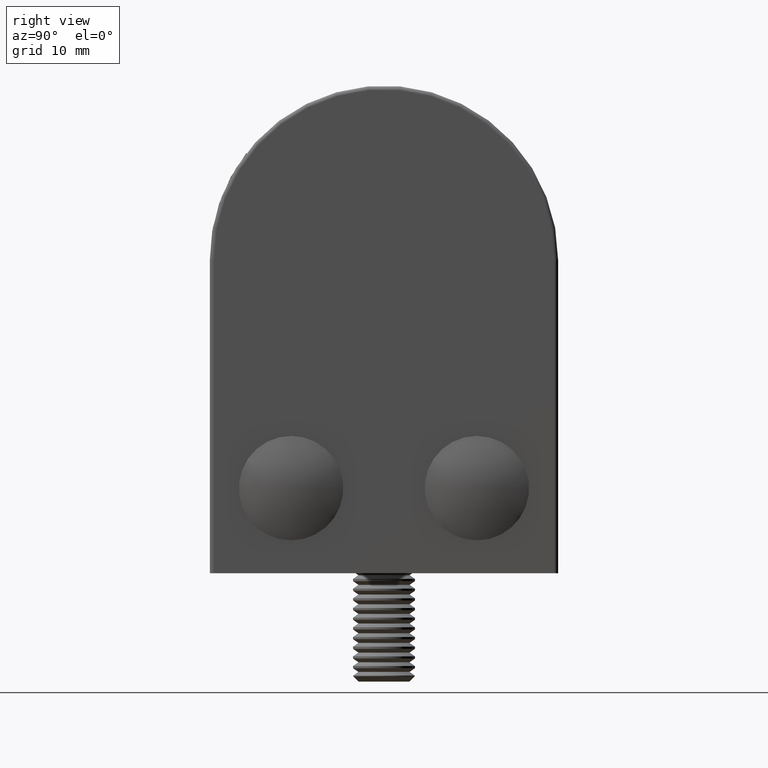
[diagram: clean part render]
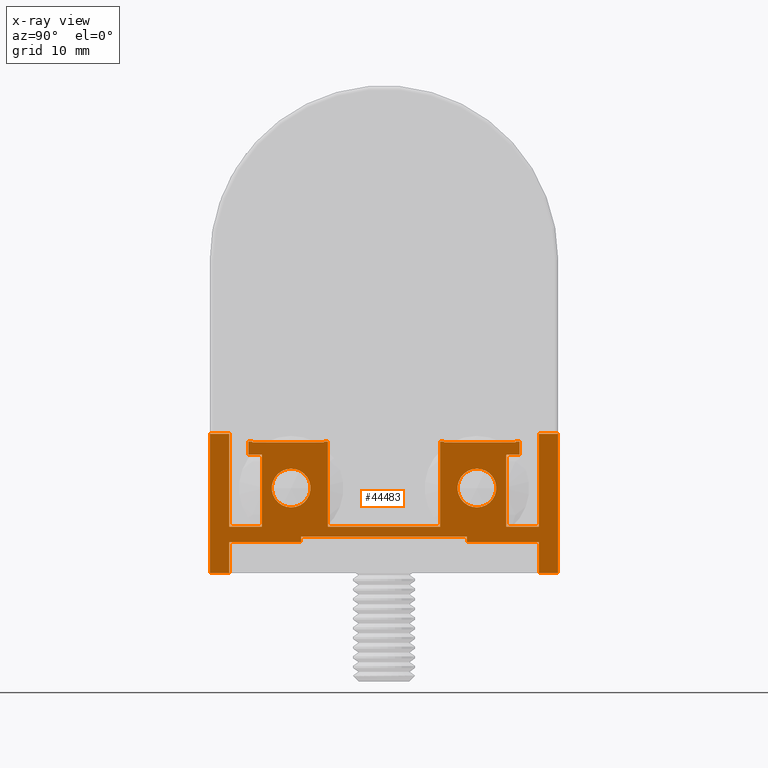
[diagram: x-ray — body ghosted, one internal face saturated and labeled with its STEP entity id]
A machine part, right view, then the same camera in x-ray: the body is ghosted and one INTERNAL B-rep face — a face not visible from any outside direction — is saturated and labeled: STEP entity #44483.
In plain terms, the highlighted planar face has unit normal (-1, 0, 0).
Its self-contained STEP definition (entity closure, byte-faithful):
#175 = CARTESIAN_POINT ( 'NONE',  ( 24.00000000000000000, -7.750000000000000888, 16.99999999999999289 ) ) ;
#179 = EDGE_CURVE ( 'NONE', #23069, #77749, #7037, .T. ) ;
#365 = ORIENTED_EDGE ( 'NONE', *, *, #23276, .T. ) ;
#726 = ORIENTED_EDGE ( 'NONE', *, *, #45561, .T. ) ;
#769 = EDGE_CURVE ( 'NONE', #29407, #78637, #53431, .T. ) ;
#1333 = LINE ( 'NONE', #9207, #34556 ) ;
#1626 = VECTOR ( 'NONE', #29987, 1000.000000000000000 ) ;
#1804 = VECTOR ( 'NONE', #19120, 1000.000000000000000 ) ;
#2025 = ORIENTED_EDGE ( 'NONE', *, *, #15524, .T. ) ;
#2121 = EDGE_CURVE ( 'NONE', #52849, #42431, #52768, .T. ) ;
#2477 = VECTOR ( 'NONE', #87224, 1000.000000000000000 ) ;
#3019 = DIRECTION ( 'NONE',  ( 0.000000000000000000, 1.000000000000000000, 0.000000000000000000 ) ) ;
#3547 = CARTESIAN_POINT ( 'NONE',  ( 24.00000000000000000, -17.00000000000002487, 16.99999999999999289 ) ) ;
#3670 = LINE ( 'NONE', #71848, #39120 ) ;
#4081 = EDGE_CURVE ( 'NONE', #17194, #20747, #64400, .T. ) ;
#4280 = CARTESIAN_POINT ( 'NONE',  ( 24.00000000000000000, -15.80000000000002203, 15.30000000000000071 ) ) ;
#4371 = EDGE_CURVE ( 'NONE', #44030, #11812, #46755, .T. ) ;
#4457 = VECTOR ( 'NONE', #29311, 1000.000000000000000 ) ;
#4459 = LINE ( 'NONE', #7179, #58719 ) ;
#5340 = EDGE_CURVE ( 'NONE', #5897, #13087, #33961, .T. ) ;
#5419 = CARTESIAN_POINT ( 'NONE',  ( 24.00000000000000000, 7.750000000000000888, 16.99999999999999289 ) ) ;
#5475 = VECTOR ( 'NONE', #74076, 1000.000000000000000 ) ;
#5629 = DIRECTION ( 'NONE',  ( 1.000000000000000000, -0.000000000000000000, -0.000000000000000000 ) ) ;
#5897 = VERTEX_POINT ( 'NONE', #35200 ) ;
#5985 = VERTEX_POINT ( 'NONE', #22839 ) ;
#6019 = EDGE_CURVE ( 'NONE', #51331, #5985, #77993, .T. ) ;
#6159 = LINE ( 'NONE', #36905, #17305 ) ;
#6211 = CARTESIAN_POINT ( 'NONE',  ( 24.00000000000000000, -7.250000000000000000, 5.999999999999998224 ) ) ;
#7037 = LINE ( 'NONE', #21495, #54564 ) ;
#7179 = CARTESIAN_POINT ( 'NONE',  ( 24.00000000000000000, -20.00000000000002132, -3.469446951953614189E-15 ) ) ;
#7381 = CARTESIAN_POINT ( 'NONE',  ( 24.00000000000000000, -15.80000000000002203, 6.000000000000000000 ) ) ;
#7790 = VERTEX_POINT ( 'NONE', #11338 ) ;
#8426 = DIRECTION ( 'NONE',  ( -0.000000000000000000, -0.000000000000000000, 1.000000000000000000 ) ) ;
#8582 = LINE ( 'NONE', #37899, #13033 ) ;
#8688 = DIRECTION ( 'NONE',  ( -0.000000000000000000, 1.927470528863119542E-16, -1.000000000000000000 ) ) ;
#8914 = CARTESIAN_POINT ( 'NONE',  ( 24.00000000000000000, 11.99999999999999822, 8.500000000000010658 ) ) ;
#9117 = EDGE_CURVE ( 'NONE', #52030, #52030, #28099, .T. ) ;
#9207 = CARTESIAN_POINT ( 'NONE',  ( 24.00000000000000000, -7.750000000000000888, 16.89999999999999503 ) ) ;
#9351 = ORIENTED_EDGE ( 'NONE', *, *, #85510, .F. ) ;
#9449 = EDGE_CURVE ( 'NONE', #70381, #7790, #37928, .T. ) ;
#9460 = ORIENTED_EDGE ( 'NONE', *, *, #5340, .T. ) ;
#9526 = LINE ( 'NONE', #65045, #24060 ) ;
#9776 = AXIS2_PLACEMENT_3D ( 'NONE', #26105, #75361, #82505 ) ;
#10851 = VECTOR ( 'NONE', #19163, 1000.000000000000000 ) ;
#11272 = VECTOR ( 'NONE', #67796, 1000.000000000000000 ) ;
#11338 = CARTESIAN_POINT ( 'NONE',  ( 24.00000000000000000, -20.00000000000002132, 17.99999999999999289 ) ) ;
#11526 = ORIENTED_EDGE ( 'NONE', *, *, #2121, .F. ) ;
#11812 = VERTEX_POINT ( 'NONE', #78569 ) ;
#12343 = DIRECTION ( 'NONE',  ( 0.000000000000000000, 1.000000000000000000, 0.000000000000000000 ) ) ;
#12377 = CARTESIAN_POINT ( 'NONE',  ( 24.00000000000000000, -22.50000000000002132, 6.000000000000000000 ) ) ;
#12544 = VECTOR ( 'NONE', #61706, 1000.000000000000000 ) ;
#12609 = VECTOR ( 'NONE', #36562, 1000.000000000000000 ) ;
#12685 = EDGE_LOOP ( 'NONE', ( #62962, #23605, #726, #365, #81302, #84415, #9460, #20402, #2025, #82253, #51448, #11526, #9351, #38519, #26990, #50367, #84139, #40337, #58943, #85556, #64495, #31515, #79557, #31593, #63405, #51352, #47213, #79127, #12775, #32012, #39158, #73722, #82364, #53219, #83090, #14136 ) ) ;
#12775 = ORIENTED_EDGE ( 'NONE', *, *, #78792, .T. ) ;
#12813 = VERTEX_POINT ( 'NONE', #6211 ) ;
#13033 = VECTOR ( 'NONE', #87809, 1000.000000000000000 ) ;
#13087 = VERTEX_POINT ( 'NONE', #23829 ) ;
#14086 = CIRCLE ( 'NONE', #9776, 2.499999999999990230 ) ;
#14136 = ORIENTED_EDGE ( 'NONE', *, *, #179, .T. ) ;
#14214 = EDGE_CURVE ( 'NONE', #20747, #87682, #4459, .T. ) ;
#15012 = VERTEX_POINT ( 'NONE', #41757 ) ;
#15065 = DIRECTION ( 'NONE',  ( 0.000000000000000000, -0.000000000000000000, -1.000000000000000000 ) ) ;
#15071 = VECTOR ( 'NONE', #8688, 1000.000000000000000 ) ;
#15524 = EDGE_CURVE ( 'NONE', #87456, #73760, #70050, .T. ) ;
#15744 = CARTESIAN_POINT ( 'NONE',  ( 24.00000000000000000, 22.50000000000001776, 8.673617379884035472E-15 ) ) ;
#16621 = EDGE_CURVE ( 'NONE', #49122, #16792, #18573, .T. ) ;
#16792 = VERTEX_POINT ( 'NONE', #4280 ) ;
#16876 = ORIENTED_EDGE ( 'NONE', *, *, #29657, .F. ) ;
#16899 = LINE ( 'NONE', #3547, #11272 ) ;
#17123 = CARTESIAN_POINT ( 'NONE',  ( 24.00000000000000000, 7.750000000000000888, 16.89999999999999503 ) ) ;
#17194 = VERTEX_POINT ( 'NONE', #69286 ) ;
#17305 = VECTOR ( 'NONE', #43737, 1000.000000000000000 ) ;
#18131 = LINE ( 'NONE', #35352, #12609 ) ;
#18263 = LINE ( 'NONE', #15744, #1626 ) ;
#18363 = CARTESIAN_POINT ( 'NONE',  ( 24.00000000000000000, -10.69999999999999929, 3.999999999999995559 ) ) ;
#18573 = LINE ( 'NONE', #25692, #10851 ) ;
#18762 = LINE ( 'NONE', #88259, #5475 ) ;
#19120 = DIRECTION ( 'NONE',  ( 0.000000000000000000, 0.000000000000000000, -1.000000000000000000 ) ) ;
#19163 = DIRECTION ( 'NONE',  ( 0.000000000000000000, 0.000000000000000000, 1.000000000000000000 ) ) ;
#19560 = DIRECTION ( 'NONE',  ( -0.000000000000000000, -1.000000000000000000, -0.000000000000000000 ) ) ;
#19588 = LINE ( 'NONE', #76436, #60423 ) ;
#19835 = CARTESIAN_POINT ( 'NONE',  ( 24.00000000000000000, 0.000000000000000000, 4.700000000000000178 ) ) ;
#20165 = VERTEX_POINT ( 'NONE', #78363 ) ;
#20402 = ORIENTED_EDGE ( 'NONE', *, *, #45250, .T. ) ;
#20560 = DIRECTION ( 'NONE',  ( -0.000000000000000000, 1.000000000000000000, -1.387778780781448239E-15 ) ) ;
#20619 = FACE_BOUND ( 'NONE', #72479, .T. ) ;
#20747 = VERTEX_POINT ( 'NONE', #52047 ) ;
#21472 = VECTOR ( 'NONE', #12343, 1000.000000000000000 ) ;
#21495 = CARTESIAN_POINT ( 'NONE',  ( 24.00000000000000000, -10.69999999999999929, 0.000000000000000000 ) ) ;
#21615 = DIRECTION ( 'NONE',  ( 0.000000000000000000, 1.000000000000000000, 1.387778780781444256E-14 ) ) ;
#21764 = FACE_BOUND ( 'NONE', #24442, .T. ) ;
#21778 = DIRECTION ( 'NONE',  ( 0.000000000000000000, 0.000000000000000000, 1.000000000000000000 ) ) ;
#22466 = CARTESIAN_POINT ( 'NONE',  ( 24.00000000000000000, -7.750000000000000888, 16.89999999999999503 ) ) ;
#22477 = VERTEX_POINT ( 'NONE', #51573 ) ;
#22839 = CARTESIAN_POINT ( 'NONE',  ( 24.00000000000000000, 10.69999999999999751, 3.999999999999999112 ) ) ;
#23069 = VERTEX_POINT ( 'NONE', #18363 ) ;
#23140 = DIRECTION ( 'NONE',  ( -0.000000000000000000, 0.000000000000000000, 1.000000000000000000 ) ) ;
#23276 = EDGE_CURVE ( 'NONE', #62829, #27954, #33880, .T. ) ;
#23378 = LINE ( 'NONE', #175, #4457 ) ;
#23605 = ORIENTED_EDGE ( 'NONE', *, *, #6019, .T. ) ;
#23829 = CARTESIAN_POINT ( 'NONE',  ( 24.00000000000000000, 20.00000000000002132, 17.99999999999999645 ) ) ;
#24060 = VECTOR ( 'NONE', #86261, 1000.000000000000000 ) ;
#24383 = EDGE_CURVE ( 'NONE', #27954, #54988, #18263, .T. ) ;
#24442 = EDGE_LOOP ( 'NONE', ( #29204 ) ) ;
#25468 = EDGE_CURVE ( 'NONE', #20165, #86797, #89879, .T. ) ;
#25596 = CARTESIAN_POINT ( 'NONE',  ( 24.00000000000000000, 15.80000000000002203, 15.30000000000000071 ) ) ;
#25603 = EDGE_CURVE ( 'NONE', #42431, #22477, #18131, .T. ) ;
#25692 = CARTESIAN_POINT ( 'NONE',  ( 24.00000000000000000, -15.80000000000002203, 15.30000000000000071 ) ) ;
#25739 = CARTESIAN_POINT ( 'NONE',  ( 24.00000000000000000, 10.69999999999999929, 4.700000000000000178 ) ) ;
#25784 = VECTOR ( 'NONE', #75952, 1000.000000000000000 ) ;
#25888 = DIRECTION ( 'NONE',  ( 0.000000000000000000, 0.000000000000000000, -1.000000000000000000 ) ) ;
#26105 = CARTESIAN_POINT ( 'NONE',  ( 24.00000000000000000, 11.99999999999999822, 11.00000000000000178 ) ) ;
#26855 = VECTOR ( 'NONE', #41920, 1000.000000000000000 ) ;
#26990 = ORIENTED_EDGE ( 'NONE', *, *, #45052, .F. ) ;
#27676 = VERTEX_POINT ( 'NONE', #28810 ) ;
#27954 = VERTEX_POINT ( 'NONE', #60251 ) ;
#27984 = CARTESIAN_POINT ( 'NONE',  ( 24.00000000000000000, -22.50000000000001776, 0.000000000000000000 ) ) ;
#28099 = CIRCLE ( 'NONE', #36956, 2.499999999999990230 ) ;
#28212 = CARTESIAN_POINT ( 'NONE',  ( 24.00000000000000000, 17.00000000000002487, 16.99999999999999289 ) ) ;
#28810 = CARTESIAN_POINT ( 'NONE',  ( 24.00000000000000000, -20.00000000000002132, 3.999999999999994671 ) ) ;
#29060 = EDGE_CURVE ( 'NONE', #66699, #29407, #16899, .T. ) ;
#29204 = ORIENTED_EDGE ( 'NONE', *, *, #9117, .F. ) ;
#29224 = EDGE_CURVE ( 'NONE', #22477, #73760, #91648, .T. ) ;
#29288 = VERTEX_POINT ( 'NONE', #89383 ) ;
#29311 = DIRECTION ( 'NONE',  ( 0.000000000000000000, 0.000000000000000000, 1.000000000000000000 ) ) ;
#29407 = VERTEX_POINT ( 'NONE', #85329 ) ;
#29657 = EDGE_CURVE ( 'NONE', #65248, #65248, #14086, .T. ) ;
#29987 = DIRECTION ( 'NONE',  ( -0.000000000000000000, 1.000000000000000000, 3.591911631868361170E-15 ) ) ;
#30420 = LINE ( 'NONE', #60565, #51416 ) ;
#31309 = VECTOR ( 'NONE', #89906, 1000.000000000000000 ) ;
#31515 = ORIENTED_EDGE ( 'NONE', *, *, #79477, .F. ) ;
#31593 = ORIENTED_EDGE ( 'NONE', *, *, #769, .F. ) ;
#32012 = ORIENTED_EDGE ( 'NONE', *, *, #9449, .T. ) ;
#32469 = VECTOR ( 'NONE', #64429, 1000.000000000000000 ) ;
#33340 = CARTESIAN_POINT ( 'NONE',  ( 24.00000000000000000, 17.50000000000002132, 17.00000000000000000 ) ) ;
#33492 = EDGE_CURVE ( 'NONE', #40816, #12813, #62318, .T. ) ;
#33880 = LINE ( 'NONE', #72222, #15071 ) ;
#33961 = LINE ( 'NONE', #43494, #87977 ) ;
#34556 = VECTOR ( 'NONE', #3019, 1000.000000000000000 ) ;
#35196 = DIRECTION ( 'NONE',  ( 0.000000000000000000, 1.000000000000000000, 1.301042606982604088E-16 ) ) ;
#35200 = CARTESIAN_POINT ( 'NONE',  ( 24.00000000000000000, 22.50000000000001776, 17.99999999999999645 ) ) ;
#35352 = CARTESIAN_POINT ( 'NONE',  ( 24.00000000000000000, 17.50000000000002132, 15.30000000000000071 ) ) ;
#35790 = CARTESIAN_POINT ( 'NONE',  ( 24.00000000000000000, -17.00000000000002487, 16.89999999999999503 ) ) ;
#36523 = EDGE_CURVE ( 'NONE', #41318, #40816, #40420, .T. ) ;
#36562 = DIRECTION ( 'NONE',  ( 0.000000000000000000, -1.000000000000000000, 0.000000000000000000 ) ) ;
#36759 = CARTESIAN_POINT ( 'NONE',  ( 24.00000000000000000, -17.50000000000002132, 15.30000000000000071 ) ) ;
#36905 = CARTESIAN_POINT ( 'NONE',  ( 24.00000000000000000, -22.50000000000002132, 6.000000000000000000 ) ) ;
#36956 = AXIS2_PLACEMENT_3D ( 'NONE', #75399, #5629, #54819 ) ;
#37260 = LINE ( 'NONE', #28212, #57192 ) ;
#37708 = VECTOR ( 'NONE', #25888, 1000.000000000000000 ) ;
#37899 = CARTESIAN_POINT ( 'NONE',  ( 24.00000000000000000, 22.50000000000001776, 17.99999999999999645 ) ) ;
#37928 = LINE ( 'NONE', #51047, #61115 ) ;
#38249 = DIRECTION ( 'NONE',  ( 0.000000000000000000, 0.000000000000000000, 1.000000000000000000 ) ) ;
#38519 = ORIENTED_EDGE ( 'NONE', *, *, #4371, .F. ) ;
#39120 = VECTOR ( 'NONE', #38249, 1000.000000000000000 ) ;
#39158 = ORIENTED_EDGE ( 'NONE', *, *, #73794, .T. ) ;
#39778 = EDGE_CURVE ( 'NONE', #86797, #29288, #66603, .T. ) ;
#40107 = DIRECTION ( 'NONE',  ( 0.000000000000000000, 1.000000000000000000, 1.301042606982604088E-16 ) ) ;
#40218 = LINE ( 'NONE', #5419, #12544 ) ;
#40337 = ORIENTED_EDGE ( 'NONE', *, *, #25468, .F. ) ;
#40409 = LINE ( 'NONE', #75999, #88948 ) ;
#40420 = LINE ( 'NONE', #44149, #54774 ) ;
#40463 = CARTESIAN_POINT ( 'NONE',  ( 24.00000000000000000, -17.00000000000002487, 16.89999999999999503 ) ) ;
#40816 = VERTEX_POINT ( 'NONE', #86376 ) ;
#40935 = CARTESIAN_POINT ( 'NONE',  ( 24.00000000000000000, 7.250000000000000000, 17.00000000000000000 ) ) ;
#41318 = VERTEX_POINT ( 'NONE', #84705 ) ;
#41757 = CARTESIAN_POINT ( 'NONE',  ( 24.00000000000000000, 7.750000000000000888, 16.89999999999999503 ) ) ;
#41920 = DIRECTION ( 'NONE',  ( -0.000000000000000000, 1.927470528863119542E-16, -1.000000000000000000 ) ) ;
#42431 = VERTEX_POINT ( 'NONE', #59087 ) ;
#43095 = CARTESIAN_POINT ( 'NONE',  ( 24.00000000000000000, 20.00000000000002132, 4.000000000000000000 ) ) ;
#43494 = CARTESIAN_POINT ( 'NONE',  ( 24.00000000000000000, 20.00000000000002132, 17.99999999999999645 ) ) ;
#43737 = DIRECTION ( 'NONE',  ( -0.000000000000000000, -1.000000000000000000, -0.000000000000000000 ) ) ;
#44030 = VERTEX_POINT ( 'NONE', #79916 ) ;
#44149 = CARTESIAN_POINT ( 'NONE',  ( 24.00000000000000000, -7.250000000000000000, 17.00000000000000000 ) ) ;
#44242 = CARTESIAN_POINT ( 'NONE',  ( 24.00000000000000000, 17.50000000000002132, 17.00000000000000000 ) ) ;
#44483 = ADVANCED_FACE ( 'NONE', ( #20619, #81282, #21764 ), #78578, .F. ) ;
#44939 = EDGE_CURVE ( 'NONE', #20165, #12813, #6159, .T. ) ;
#45052 = EDGE_CURVE ( 'NONE', #15012, #44030, #80136, .T. ) ;
#45250 = EDGE_CURVE ( 'NONE', #13087, #87456, #40409, .T. ) ;
#45561 = EDGE_CURVE ( 'NONE', #5985, #62829, #30420, .T. ) ;
#46264 = CARTESIAN_POINT ( 'NONE',  ( 24.00000000000000000, -10.69999999999999929, 4.700000000000000178 ) ) ;
#46755 = LINE ( 'NONE', #60140, #2477 ) ;
#46862 = VECTOR ( 'NONE', #19560, 1000.000000000000000 ) ;
#47062 = EDGE_CURVE ( 'NONE', #77749, #51331, #77713, .T. ) ;
#47131 = CARTESIAN_POINT ( 'NONE',  ( 24.00000000000000000, -17.50000000000002132, 17.00000000000000000 ) ) ;
#47213 = ORIENTED_EDGE ( 'NONE', *, *, #49558, .F. ) ;
#47477 = EDGE_CURVE ( 'NONE', #29288, #15012, #40218, .T. ) ;
#48446 = VERTEX_POINT ( 'NONE', #36759 ) ;
#48459 = EDGE_CURVE ( 'NONE', #78637, #61224, #1333, .T. ) ;
#49122 = VERTEX_POINT ( 'NONE', #7381 ) ;
#49558 = EDGE_CURVE ( 'NONE', #16792, #48446, #9526, .T. ) ;
#50367 = ORIENTED_EDGE ( 'NONE', *, *, #47477, .F. ) ;
#50421 = DIRECTION ( 'NONE',  ( 0.000000000000000000, 1.000000000000000000, 1.387778780781454195E-14 ) ) ;
#51047 = CARTESIAN_POINT ( 'NONE',  ( 24.00000000000000000, -20.00000000000002132, 17.99999999999999289 ) ) ;
#51331 = VERTEX_POINT ( 'NONE', #25739 ) ;
#51352 = ORIENTED_EDGE ( 'NONE', *, *, #65289, .F. ) ;
#51416 = VECTOR ( 'NONE', #40107, 1000.000000000000000 ) ;
#51448 = ORIENTED_EDGE ( 'NONE', *, *, #25603, .F. ) ;
#51573 = CARTESIAN_POINT ( 'NONE',  ( 24.00000000000000000, 15.80000000000002203, 15.30000000000000071 ) ) ;
#52030 = VERTEX_POINT ( 'NONE', #77183 ) ;
#52047 = CARTESIAN_POINT ( 'NONE',  ( 24.00000000000000000, -22.50000000000001776, 0.000000000000000000 ) ) ;
#52144 = LINE ( 'NONE', #80478, #55500 ) ;
#52233 = CARTESIAN_POINT ( 'NONE',  ( 24.00000000000000000, 15.80000000000002203, 6.000000000000000000 ) ) ;
#52768 = LINE ( 'NONE', #33340, #1804 ) ;
#52849 = VERTEX_POINT ( 'NONE', #44242 ) ;
#53219 = ORIENTED_EDGE ( 'NONE', *, *, #55421, .T. ) ;
#53431 = LINE ( 'NONE', #40463, #78773 ) ;
#54564 = VECTOR ( 'NONE', #56104, 1000.000000000000000 ) ;
#54774 = VECTOR ( 'NONE', #21615, 1000.000000000000000 ) ;
#54819 = DIRECTION ( 'NONE',  ( 0.000000000000000000, 0.000000000000000000, -1.000000000000000000 ) ) ;
#54988 = VERTEX_POINT ( 'NONE', #75731 ) ;
#55421 = EDGE_CURVE ( 'NONE', #87682, #27676, #66564, .T. ) ;
#55500 = VECTOR ( 'NONE', #84613, 1000.000000000000000 ) ;
#56104 = DIRECTION ( 'NONE',  ( 0.000000000000000000, 0.000000000000000000, 1.000000000000000000 ) ) ;
#57192 = VECTOR ( 'NONE', #50421, 1000.000000000000000 ) ;
#57420 = CARTESIAN_POINT ( 'NONE',  ( 24.00000000000000000, 10.69999999999999929, 0.000000000000000000 ) ) ;
#57965 = CARTESIAN_POINT ( 'NONE',  ( 24.00000000000000000, -7.250000000000000000, 17.00000000000000000 ) ) ;
#58315 = CARTESIAN_POINT ( 'NONE',  ( 24.00000000000000000, 0.000000000000000000, 0.000000000000000000 ) ) ;
#58719 = VECTOR ( 'NONE', #20560, 1000.000000000000000 ) ;
#58943 = ORIENTED_EDGE ( 'NONE', *, *, #44939, .T. ) ;
#59087 = CARTESIAN_POINT ( 'NONE',  ( 24.00000000000000000, 17.50000000000002132, 15.30000000000000071 ) ) ;
#60140 = CARTESIAN_POINT ( 'NONE',  ( 24.00000000000000000, 17.00000000000002487, 16.89999999999999503 ) ) ;
#60251 = CARTESIAN_POINT ( 'NONE',  ( 24.00000000000000000, 20.00000000000002487, -3.061616997868368350E-16 ) ) ;
#60423 = VECTOR ( 'NONE', #35196, 1000.000000000000000 ) ;
#60563 = CARTESIAN_POINT ( 'NONE',  ( 24.00000000000000000, 20.00000000000001776, 6.000000000000000000 ) ) ;
#60565 = CARTESIAN_POINT ( 'NONE',  ( 24.00000000000000000, -20.00000000000002132, 3.999999999999994671 ) ) ;
#61115 = VECTOR ( 'NONE', #8426, 1000.000000000000000 ) ;
#61224 = VERTEX_POINT ( 'NONE', #22466 ) ;
#61410 = VECTOR ( 'NONE', #66455, 1000.000000000000000 ) ;
#61706 = DIRECTION ( 'NONE',  ( 0.000000000000000000, 0.000000000000000000, -1.000000000000000000 ) ) ;
#62310 = EDGE_CURVE ( 'NONE', #27676, #23069, #19588, .T. ) ;
#62318 = LINE ( 'NONE', #57965, #32469 ) ;
#62829 = VERTEX_POINT ( 'NONE', #43095 ) ;
#62962 = ORIENTED_EDGE ( 'NONE', *, *, #47062, .T. ) ;
#63405 = ORIENTED_EDGE ( 'NONE', *, *, #29060, .F. ) ;
#64000 = CARTESIAN_POINT ( 'NONE',  ( 24.00000000000000000, -20.00000000000002132, 6.000000000000000000 ) ) ;
#64400 = LINE ( 'NONE', #27984, #26855 ) ;
#64429 = DIRECTION ( 'NONE',  ( 0.000000000000000000, 0.000000000000000000, -1.000000000000000000 ) ) ;
#64495 = ORIENTED_EDGE ( 'NONE', *, *, #36523, .F. ) ;
#65045 = CARTESIAN_POINT ( 'NONE',  ( 24.00000000000000000, -17.50000000000002132, 15.30000000000000071 ) ) ;
#65248 = VERTEX_POINT ( 'NONE', #8914 ) ;
#65289 = EDGE_CURVE ( 'NONE', #48446, #66699, #3670, .T. ) ;
#65349 = DIRECTION ( 'NONE',  ( -1.000000000000000000, 0.000000000000000000, -0.000000000000000000 ) ) ;
#66455 = DIRECTION ( 'NONE',  ( 0.000000000000000000, 1.000000000000000000, 0.000000000000000000 ) ) ;
#66564 = LINE ( 'NONE', #90440, #25784 ) ;
#66603 = LINE ( 'NONE', #40935, #31309 ) ;
#66699 = VERTEX_POINT ( 'NONE', #47131 ) ;
#67796 = DIRECTION ( 'NONE',  ( 0.000000000000000000, 1.000000000000000000, -1.387778780781454195E-14 ) ) ;
#69286 = CARTESIAN_POINT ( 'NONE',  ( 24.00000000000000000, -22.50000000000002132, 17.99999999999999645 ) ) ;
#70050 = LINE ( 'NONE', #12377, #46862 ) ;
#70323 = VECTOR ( 'NONE', #15065, 1000.000000000000000 ) ;
#70381 = VERTEX_POINT ( 'NONE', #64000 ) ;
#71848 = CARTESIAN_POINT ( 'NONE',  ( 24.00000000000000000, -17.50000000000002132, 17.00000000000000000 ) ) ;
#72222 = CARTESIAN_POINT ( 'NONE',  ( 24.00000000000000000, 20.00000000000002487, -3.061616997868368350E-16 ) ) ;
#72479 = EDGE_LOOP ( 'NONE', ( #16876 ) ) ;
#73722 = ORIENTED_EDGE ( 'NONE', *, *, #4081, .T. ) ;
#73760 = VERTEX_POINT ( 'NONE', #52233 ) ;
#73794 = EDGE_CURVE ( 'NONE', #7790, #17194, #18762, .T. ) ;
#74076 = DIRECTION ( 'NONE',  ( -0.000000000000000000, -1.000000000000000000, 1.387778780781446464E-15 ) ) ;
#74393 = VECTOR ( 'NONE', #21778, 1000.000000000000000 ) ;
#75361 = DIRECTION ( 'NONE',  ( 1.000000000000000000, -0.000000000000000000, -0.000000000000000000 ) ) ;
#75399 = CARTESIAN_POINT ( 'NONE',  ( 24.00000000000000000, -12.00000000000000178, 10.99999999999999822 ) ) ;
#75731 = CARTESIAN_POINT ( 'NONE',  ( 24.00000000000000000, 22.50000000000001776, 8.673617379884035472E-15 ) ) ;
#75952 = DIRECTION ( 'NONE',  ( -0.000000000000000000, -0.000000000000000000, 1.000000000000000000 ) ) ;
#75999 = CARTESIAN_POINT ( 'NONE',  ( 24.00000000000000000, 20.00000000000002487, -3.061616997868368350E-16 ) ) ;
#76262 = DIRECTION ( 'NONE',  ( -0.000000000000000000, 1.927470528863119542E-16, -1.000000000000000000 ) ) ;
#76436 = CARTESIAN_POINT ( 'NONE',  ( 24.00000000000000000, -20.00000000000002132, 3.999999999999994671 ) ) ;
#77183 = CARTESIAN_POINT ( 'NONE',  ( 24.00000000000000000, -12.00000000000000178, 8.500000000000007105 ) ) ;
#77713 = LINE ( 'NONE', #19835, #21472 ) ;
#77749 = VERTEX_POINT ( 'NONE', #46264 ) ;
#77993 = LINE ( 'NONE', #57420, #70323 ) ;
#78363 = CARTESIAN_POINT ( 'NONE',  ( 24.00000000000000000, 7.250000000000002665, 6.000000000000000000 ) ) ;
#78569 = CARTESIAN_POINT ( 'NONE',  ( 24.00000000000000000, 17.00000000000002487, 16.99999999999999289 ) ) ;
#78578 = PLANE ( 'NONE',  #79383 ) ;
#78637 = VERTEX_POINT ( 'NONE', #35790 ) ;
#78773 = VECTOR ( 'NONE', #90062, 1000.000000000000000 ) ;
#78792 = EDGE_CURVE ( 'NONE', #49122, #70381, #52144, .T. ) ;
#79127 = ORIENTED_EDGE ( 'NONE', *, *, #16621, .F. ) ;
#79383 = AXIS2_PLACEMENT_3D ( 'NONE', #58315, #65349, #23140 ) ;
#79477 = EDGE_CURVE ( 'NONE', #61224, #41318, #23378, .T. ) ;
#79557 = ORIENTED_EDGE ( 'NONE', *, *, #48459, .F. ) ;
#79916 = CARTESIAN_POINT ( 'NONE',  ( 24.00000000000000000, 17.00000000000002842, 16.89999999999999503 ) ) ;
#80136 = LINE ( 'NONE', #17123, #61410 ) ;
#80478 = CARTESIAN_POINT ( 'NONE',  ( 24.00000000000000000, -22.50000000000002132, 6.000000000000000000 ) ) ;
#80754 = CARTESIAN_POINT ( 'NONE',  ( 24.00000000000000000, -20.00000000000002132, -3.469446951953614189E-15 ) ) ;
#81282 = FACE_OUTER_BOUND ( 'NONE', #12685, .T. ) ;
#81302 = ORIENTED_EDGE ( 'NONE', *, *, #24383, .T. ) ;
#82253 = ORIENTED_EDGE ( 'NONE', *, *, #29224, .F. ) ;
#82364 = ORIENTED_EDGE ( 'NONE', *, *, #14214, .T. ) ;
#82505 = DIRECTION ( 'NONE',  ( 0.000000000000000000, 0.000000000000000000, -1.000000000000000000 ) ) ;
#83090 = ORIENTED_EDGE ( 'NONE', *, *, #62310, .T. ) ;
#84139 = ORIENTED_EDGE ( 'NONE', *, *, #39778, .F. ) ;
#84415 = ORIENTED_EDGE ( 'NONE', *, *, #84727, .T. ) ;
#84613 = DIRECTION ( 'NONE',  ( -0.000000000000000000, -1.000000000000000000, -0.000000000000000000 ) ) ;
#84705 = CARTESIAN_POINT ( 'NONE',  ( 24.00000000000000000, -7.750000000000000888, 16.99999999999999289 ) ) ;
#84727 = EDGE_CURVE ( 'NONE', #54988, #5897, #8582, .T. ) ;
#85240 = CARTESIAN_POINT ( 'NONE',  ( 24.00000000000000000, 7.250000000000000000, 17.00000000000000000 ) ) ;
#85329 = CARTESIAN_POINT ( 'NONE',  ( 24.00000000000000000, -17.00000000000002487, 16.99999999999999289 ) ) ;
#85510 = EDGE_CURVE ( 'NONE', #11812, #52849, #37260, .T. ) ;
#85556 = ORIENTED_EDGE ( 'NONE', *, *, #33492, .F. ) ;
#85633 = CARTESIAN_POINT ( 'NONE',  ( 24.00000000000000000, 7.250000000000000000, 17.00000000000000000 ) ) ;
#86261 = DIRECTION ( 'NONE',  ( 0.000000000000000000, -1.000000000000000000, 0.000000000000000000 ) ) ;
#86376 = CARTESIAN_POINT ( 'NONE',  ( 24.00000000000000000, -7.250000000000000000, 17.00000000000000000 ) ) ;
#86797 = VERTEX_POINT ( 'NONE', #85633 ) ;
#86957 = DIRECTION ( 'NONE',  ( -0.000000000000000000, -1.000000000000000000, -0.000000000000000000 ) ) ;
#87224 = DIRECTION ( 'NONE',  ( 0.000000000000000000, 0.000000000000000000, 1.000000000000000000 ) ) ;
#87456 = VERTEX_POINT ( 'NONE', #60563 ) ;
#87682 = VERTEX_POINT ( 'NONE', #80754 ) ;
#87809 = DIRECTION ( 'NONE',  ( -0.000000000000000000, -0.000000000000000000, 1.000000000000000000 ) ) ;
#87977 = VECTOR ( 'NONE', #86957, 1000.000000000000000 ) ;
#88259 = CARTESIAN_POINT ( 'NONE',  ( 24.00000000000000000, -22.50000000000002132, 17.99999999999999645 ) ) ;
#88948 = VECTOR ( 'NONE', #76262, 1000.000000000000000 ) ;
#89383 = CARTESIAN_POINT ( 'NONE',  ( 24.00000000000000000, 7.750000000000000888, 16.99999999999999289 ) ) ;
#89879 = LINE ( 'NONE', #85240, #74393 ) ;
#89906 = DIRECTION ( 'NONE',  ( 0.000000000000000000, 1.000000000000000000, -1.387778780781444256E-14 ) ) ;
#90062 = DIRECTION ( 'NONE',  ( 0.000000000000000000, 0.000000000000000000, -1.000000000000000000 ) ) ;
#90440 = CARTESIAN_POINT ( 'NONE',  ( 24.00000000000000000, -20.00000000000002132, 17.99999999999999289 ) ) ;
#91648 = LINE ( 'NONE', #25596, #37708 ) ;